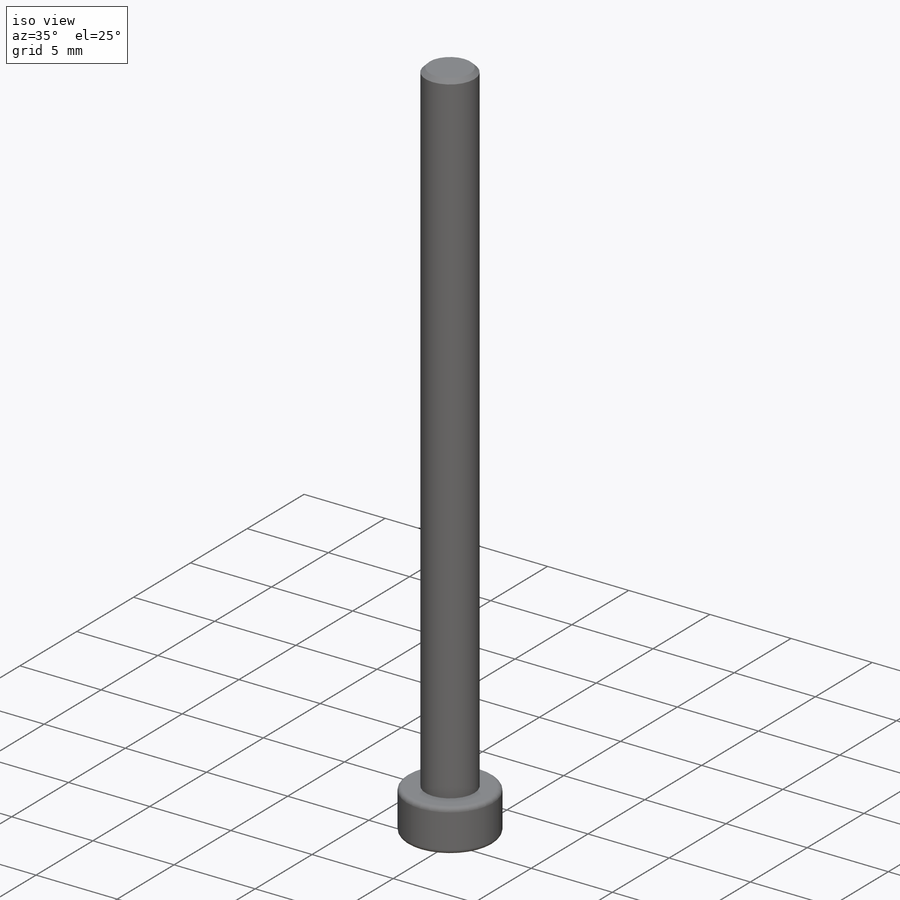
[diagram: iso view]
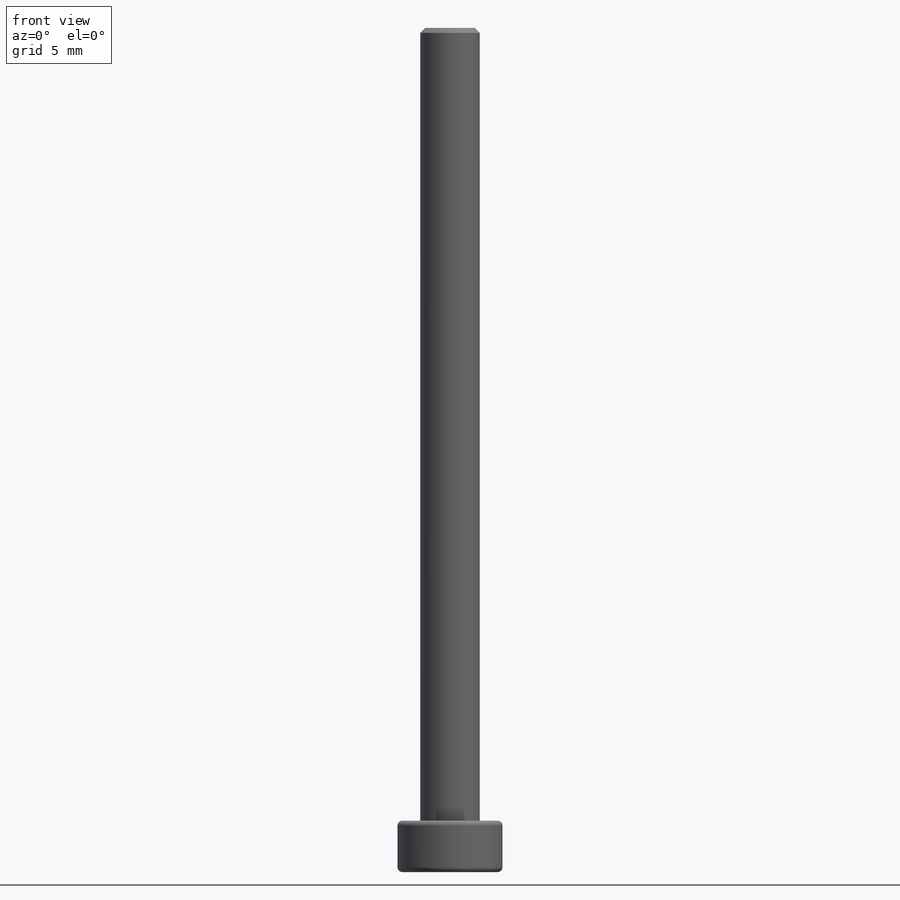
[diagram: front view]
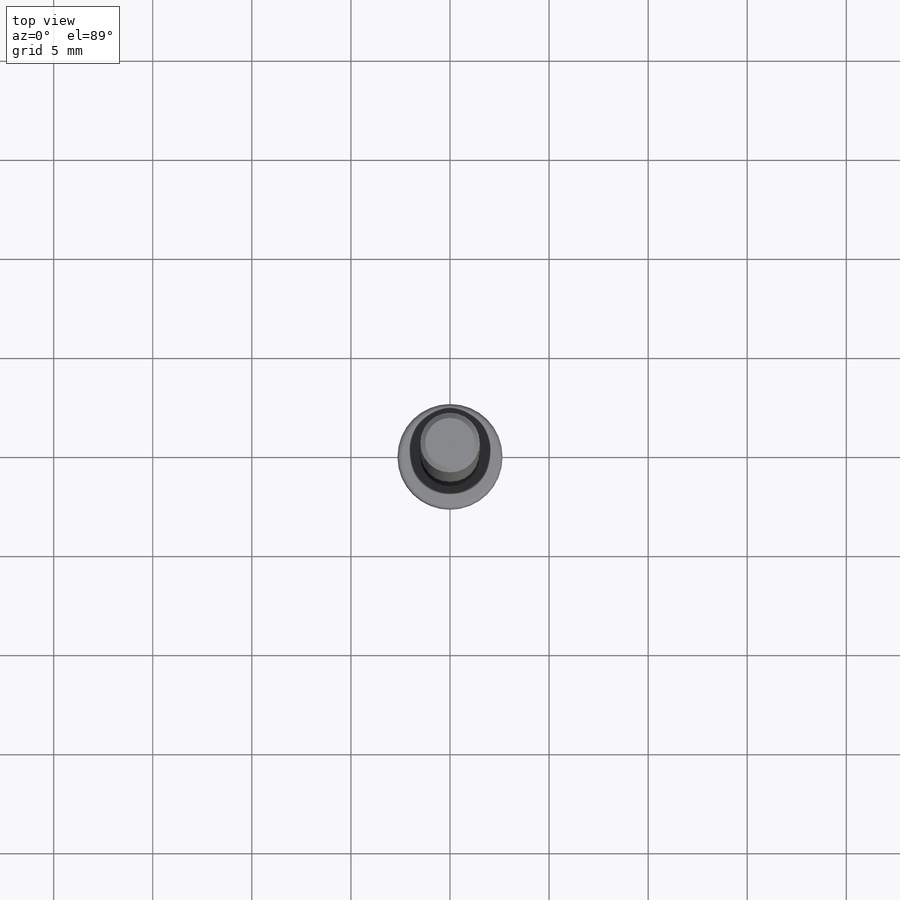
[diagram: top view]
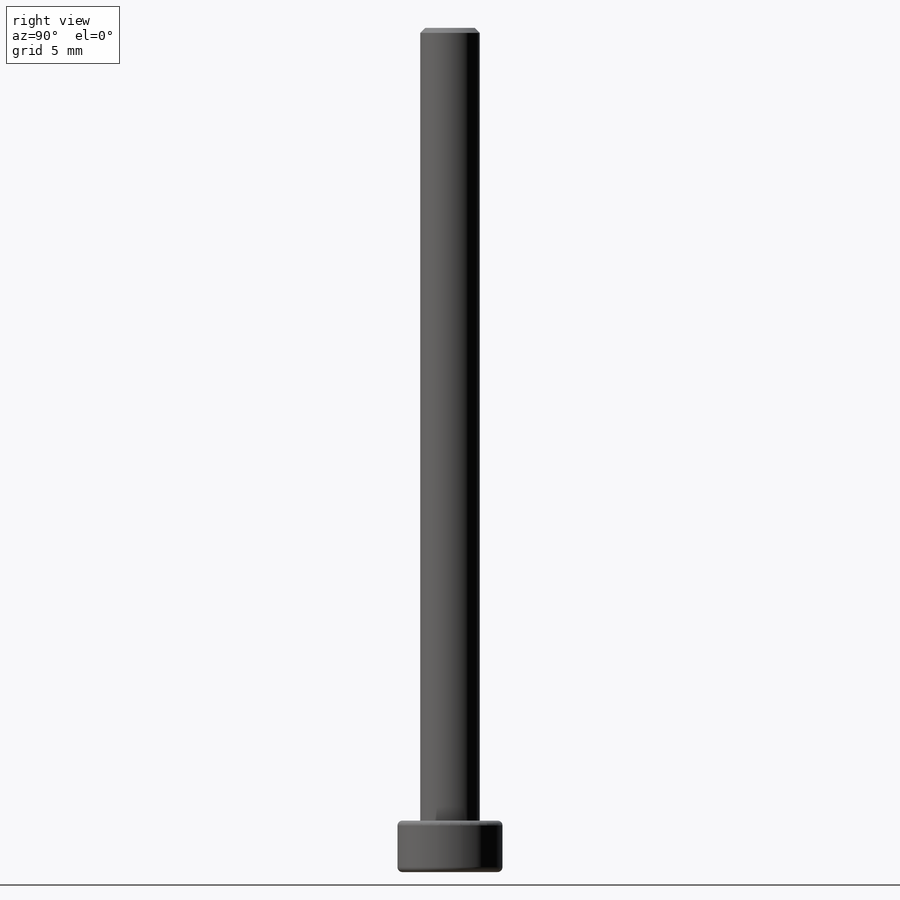
[diagram: right view]
SOLIDWORKS PART (.sldprt)
format: sldprt  version: not decoded by parser v0  size: 153,088 bytes
history: native  units: mm
features: plane x3, sketch x3, extrude x2, material x1, cut_extrude x1, fillet x1, chamfer x1 (+9 scaffold rows collapsed)
feature tree (21):
  scaffold x9  (default folders/planes/origin — collapsed)
  material  "Material <sin especificar>"
  plane  "Alzado"
  plane  "Planta"
  plane  "Vista lateral"
  sketch  "Croquis1"  dims[D1=5.3mm]
  extrude  "Saliente-Extruir1"  Depth=2.6mm
  sketch  "Croquis2"  dims[D1=3.0mm]
  extrude  "Saliente-Extruir2"  Depth=40mm
  sketch  "Croquis3"  dims[D1=2.5mm]
  cut_extrude  "Cortar-Extruir1"  Depth=1.8mm
  fillet  "Redondeo1"  Radius=0.25mm
  chamfer  "Chaflán1"  Distance=0.25mm Angle=45deg
decode coverage: 8 of 8 modeling features carry decoded parameters
note: suppression state not decoded; provenance and decode notes live in map.json
